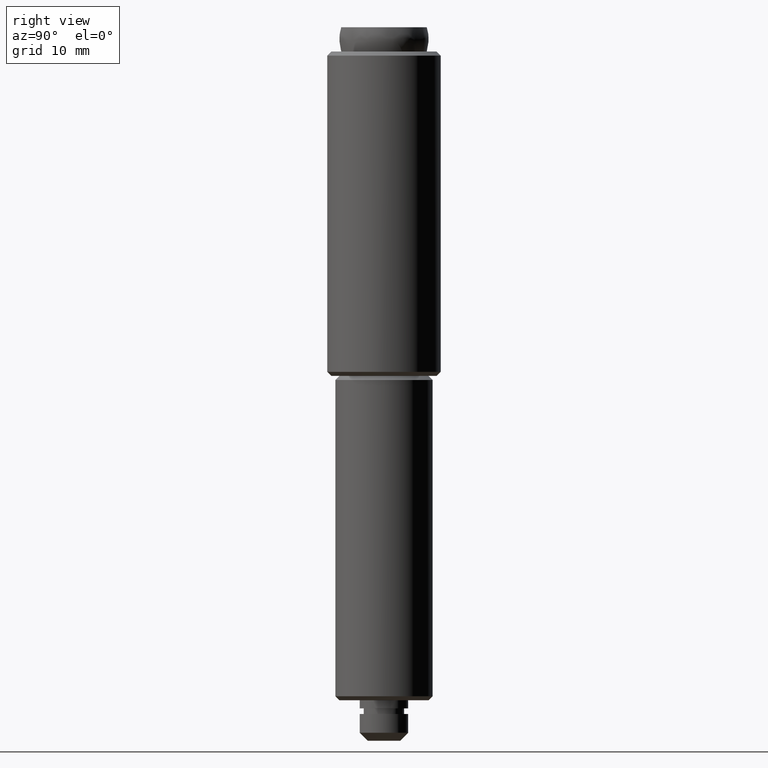
[diagram: clean part render]
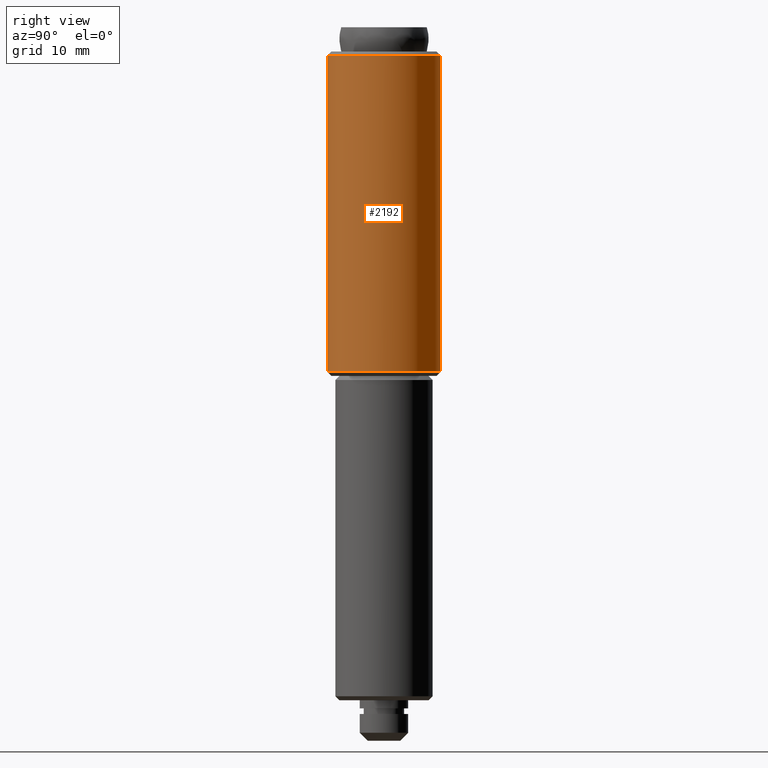
[diagram: same view with one face highlighted and labeled with its STEP entity id]
A machine part, right view. The second image highlights one B-rep face of the part: STEP entity #2192.
In plain terms, the highlighted face is a freeform B-spline surface patch.
Its self-contained STEP definition (entity closure, byte-faithful):
#1765=CARTESIAN_POINT('',(0.868896014662353,6.945863496765817,84.500000000000000));
#1766=VERTEX_POINT('',#1765);
#1823=CARTESIAN_POINT('',(-0.061085748544785,-6.999733461448646,84.500000000000057));
#1824=VERTEX_POINT('',#1823);
#1830=CARTESIAN_POINT('',(7.0,0.0,84.500000000000000));
#1831=VERTEX_POINT('',#1830);
#1832=CARTESIAN_POINT('',(7.0,0.0,84.500000000000000));
#1833=CARTESIAN_POINT('',(6.999999999999999,-6.999999999999999,84.500000000000000));
#1834=CARTESIAN_POINT('',(0.0,-7.0,84.500000000000000));
#1835=CARTESIAN_POINT('',(-0.030543455857236,-7.0,84.500000000000014));
#1836=CARTESIAN_POINT('',(-0.061085748544785,-6.999733461448647,84.500000000000057));
#1844=(BOUNDED_CURVE()B_SPLINE_CURVE(2,(#1832,#1833,#1834,#1835,#1836),.UNSPECIFIED.,.F.,.U.)B_SPLINE_CURVE_WITH_KNOTS((3,2,3),(0.500000000000000,0.750000000000000,0.751539894340640),.UNSPECIFIED.)CURVE()GEOMETRIC_REPRESENTATION_ITEM()RATIONAL_B_SPLINE_CURVE((1.0,0.707106781186547,1.0,0.998195901559749,0.996414028087323))REPRESENTATION_ITEM(''));
#1845=EDGE_CURVE('',#1831,#1824,#1844,.T.);
#1847=CARTESIAN_POINT('',(0.868896014662353,6.945863496765817,84.500000000000000));
#1848=CARTESIAN_POINT('',(6.999999999999999,6.178890200865936,84.500000000000000));
#1849=CARTESIAN_POINT('',(7.0,0.0,84.500000000000000));
#1857=(BOUNDED_CURVE()B_SPLINE_CURVE(2,(#1847,#1848,#1849),.UNSPECIFIED.,.F.,.U.)B_SPLINE_CURVE_WITH_KNOTS((3,3),(0.271473928975729,0.500000000000000),.UNSPECIFIED.)CURVE()GEOMETRIC_REPRESENTATION_ITEM()RATIONAL_B_SPLINE_CURVE((0.954005430264961,0.732265053899639,1.0))REPRESENTATION_ITEM(''));
#1858=EDGE_CURVE('',#1766,#1831,#1857,.T.);
#2048=CARTESIAN_POINT('',(0.868896014624054,6.945863496770608,45.500000000000000));
#2049=VERTEX_POINT('',#2048);
#2065=CARTESIAN_POINT('',(7.0,0.0,45.500000000000000));
#2066=VERTEX_POINT('',#2065);
#2067=CARTESIAN_POINT('',(7.0,0.0,45.500000000000000));
#2068=CARTESIAN_POINT('',(6.999999999999999,6.178890200934576,45.500000000000000));
#2069=CARTESIAN_POINT('',(0.868896014624054,6.945863496770608,45.500000000000000));
#2077=(BOUNDED_CURVE()B_SPLINE_CURVE(2,(#2067,#2068,#2069),.UNSPECIFIED.,.F.,.U.)B_SPLINE_CURVE_WITH_KNOTS((3,3),(0.500000000000000,0.728526071026129),.UNSPECIFIED.)CURVE()GEOMETRIC_REPRESENTATION_ITEM()RATIONAL_B_SPLINE_CURVE((1.0,0.732265053897461,0.954005430268568))REPRESENTATION_ITEM(''));
#2078=EDGE_CURVE('',#2066,#2049,#2077,.T.);
#2080=CARTESIAN_POINT('',(-0.061085748588325,-6.999733461448328,45.500000000000000));
#2081=VERTEX_POINT('',#2080);
#2082=CARTESIAN_POINT('',(-0.061085748588325,-6.999733461448328,45.500000000000007));
#2083=CARTESIAN_POINT('',(-0.030543455844625,-7.0,45.500000000000000));
#2084=CARTESIAN_POINT('',(0.0,-7.0,45.500000000000000));
#2085=CARTESIAN_POINT('',(6.999999999999999,-6.999999999999999,45.500000000000000));
#2086=CARTESIAN_POINT('',(7.0,0.0,45.500000000000000));
#2094=(BOUNDED_CURVE()B_SPLINE_CURVE(2,(#2082,#2083,#2084,#2085,#2086),.UNSPECIFIED.,.F.,.U.)B_SPLINE_CURVE_WITH_KNOTS((3,2,3),(0.248460105659995,0.250000000000000,0.500000000000000),.UNSPECIFIED.)CURVE()GEOMETRIC_REPRESENTATION_ITEM()RATIONAL_B_SPLINE_CURVE((0.996414028088792,0.998195901560493,1.0,0.707106781186547,1.0))REPRESENTATION_ITEM(''));
#2095=EDGE_CURVE('',#2081,#2066,#2094,.T.);
#2158=CARTESIAN_POINT('',(0.868896014558805,6.945863496778769,85.475000000000023));
#2159=CARTESIAN_POINT('',(7.054129813517112,6.172118806932546,85.475000000000009));
#2160=CARTESIAN_POINT('',(6.999733461449196,-0.061085748488617,85.475000000000023));
#2161=CARTESIAN_POINT('',(6.938647712960579,-7.060819209937813,85.475000000000023));
#2162=CARTESIAN_POINT('',(-0.061085748488617,-6.999733461449196,85.475000000000023));
#2163=CARTESIAN_POINT('',(0.868896014558805,6.945863496778769,44.500624999999992));
#2164=CARTESIAN_POINT('',(7.054129813517112,6.172118806932546,44.500624999999992));
#2165=CARTESIAN_POINT('',(6.999733461449196,-0.061085748488617,44.500624999999992));
#2166=CARTESIAN_POINT('',(6.938647712960579,-7.060819209937813,44.500624999999999));
#2167=CARTESIAN_POINT('',(-0.061085748488617,-6.999733461449196,44.500624999999992));
#2175=(BOUNDED_SURFACE()B_SPLINE_SURFACE(2,1,((#2158,#2163),(#2159,#2164),(#2160,#2165),(#2161,#2166),(#2162,#2167)),.UNSPECIFIED.,.F.,.F.,.U.)B_SPLINE_SURFACE_WITH_KNOTS((3,2,3),(2,2),(0.0,10.670141366730920,22.268121113177578),(0.0,40.974375000000030),.UNSPECIFIED.)GEOMETRIC_REPRESENTATION_ITEM()RATIONAL_B_SPLINE_SURFACE(((0.956886118190660,0.956886118190660),(0.730538238691624,0.730538238691624),(1.0,1.0),(0.707106781186548,0.707106781186548),(1.0,1.0)))REPRESENTATION_ITEM('')SURFACE());
#2176=ORIENTED_EDGE('',*,*,#1858,.T.);
#2177=ORIENTED_EDGE('',*,*,#1845,.T.);
#2178=CARTESIAN_POINT('',(-0.061085748544785,-6.999733461448646,84.500000000000057));
#2179=CARTESIAN_POINT('',(-0.061085748588325,-6.999733461448328,45.500000000000000));
#2180=QUASI_UNIFORM_CURVE('',1,(#2178,#2179),.UNSPECIFIED.,.F.,.U.);
#2181=EDGE_CURVE('',#1824,#2081,#2180,.T.);
#2182=ORIENTED_EDGE('',*,*,#2181,.T.);
#2183=ORIENTED_EDGE('',*,*,#2095,.T.);
#2184=ORIENTED_EDGE('',*,*,#2078,.T.);
#2185=CARTESIAN_POINT('',(0.868896014662353,6.945863496765817,84.500000000000000));
#2186=CARTESIAN_POINT('',(0.868896014624054,6.945863496770608,45.500000000000000));
#2187=QUASI_UNIFORM_CURVE('',1,(#2185,#2186),.UNSPECIFIED.,.F.,.U.);
#2188=EDGE_CURVE('',#1766,#2049,#2187,.T.);
#2189=ORIENTED_EDGE('',*,*,#2188,.F.);
#2190=EDGE_LOOP('',(#2176,#2177,#2182,#2183,#2184,#2189));
#2191=FACE_OUTER_BOUND('',#2190,.T.);
#2192=ADVANCED_FACE('',(#2191),#2175,.T.);